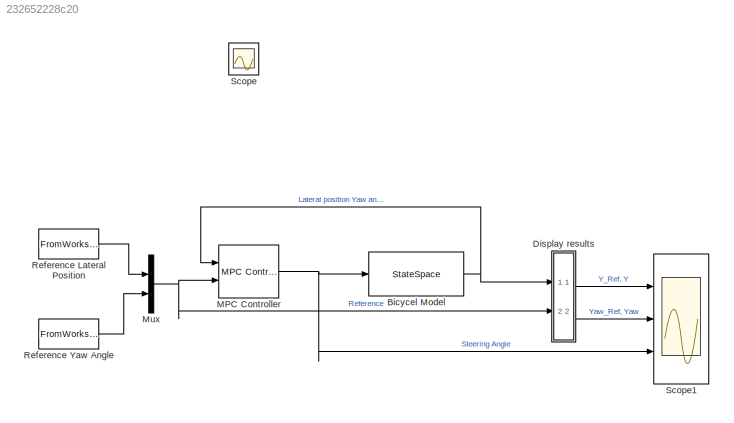
MODEL slx_232652228c20
KIND model
CONFIG AbsTol = auto
CONFIG EnableMultiTasking = off
CONFIG FixedStep = auto
CONFIG MaxStep = auto
CONFIG MinStep = auto
CONFIG RelTol = 1e-3
CONFIG SampleTimeConstraint = Unconstrained
CONFIG Solver = VariableStepAuto
CONFIG SolverName = VariableStepAuto
CONFIG StartTime = 0.0
CONFIG StopTime = 15
BLOCK [StateSpace] Bicycel Model
  A = A
  B = B
  C = C
  D = D
  InitialCondition = 0
  Ports = [1, 1]
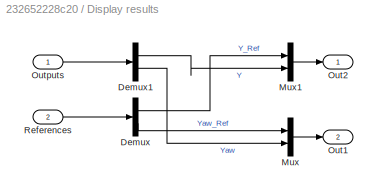
BLOCK [SubSystem] Display results
  Ports = [2, 2]
  RequestExecContextInheritance = off
  ShowPortLabels = none
BLOCK [Demux] Display results/Demux
  DisplayOption = bar
  Outputs = 2
  Ports = [1, 2]
BLOCK [Demux] Display results/Demux1
  DisplayOption = bar
  Outputs = 2
  Ports = [1, 2]
BLOCK [Mux] Display results/Mux
  DisplayOption = bar
  Inputs = 2
  Ports = [2, 1]
BLOCK [Mux] Display results/Mux1
  DisplayOption = bar
  Inputs = 2
  Ports = [2, 1]
BLOCK [Outport] Display results/Out1
  IconDisplay = Port number
  Port = 2
BLOCK [Outport] Display results/Out2
  IconDisplay = Port number
BLOCK [Inport] Display results/Outputs
  IconDisplay = Port number
BLOCK [Inport] Display results/References
  IconDisplay = Port number
  Port = 2
BLOCK [Reference] MPC Controller  REF=mpclib/MPC Controller  (lib defined in mdl_ae329e0e0455)
  Ports = [2, 1]
  SCDEnableBlockLinearizationSpecification = on
  SourceBlock = mpclib/MPC Controller
  SourceProductBaseCode = MP
  SourceProductName = Model Predictive Control Toolbox
  SourceType = MPC
BLOCK [Mux] Mux
  DisplayOption = bar
  Inputs = 2
  Ports = [2, 1]
BLOCK [FromWorkspace] Reference Lateral Position
  SampleTime = 0.1
  VariableName = y_ref2
  ZeroCross = on
BLOCK [FromWorkspace] Reference Yaw Angle
  SampleTime = 0.1
  VariableName = psy_ref2
  ZeroCross = on
BLOCK [Scope] Scope
  Floating = off
  IOType = viewer
  NumInputPorts = 1
  Ports = []
  ScopeSpecificationString = Simulink.scopes.TimeScopeBlockCfg('CurrentConfiguration', extmgr.ConfigurationSet(extmgr.Configuration('Core','General UI',true),extmgr.Configuration('Core','Source UI',true),extmgr.Configuration('Sources','WiredSimulink',true),extmgr.Configuration('Visuals','Time Domain',true,'SerializedDisplays',{struct('MinYLimReal','-10.00000','MaxYLimReal','10.00000','YLabelReal','','MinYLimMag','0.00000','Ma...<+1326ch>
BLOCK [Scope] Scope1
  Floating = off
  NumInputPorts = 3
  Ports = [3]
  ScopeSpecificationString = Simulink.scopes.TimeScopeBlockCfg('CurrentConfiguration', extmgr.ConfigurationSet(extmgr.Configuration('Core','General UI',true,'FigureColor',[0.831372549019608 0.815686274509804 0.784313725490196]),extmgr.Configuration('Core','Source UI',true),extmgr.Configuration('Sources','WiredSimulink',true,'DataLoggingVariableName','ScopeData1'),extmgr.Configuration('Visuals','Time Domain',true,'TimeAxisLabe...<+3465ch>
NET Bicycel Model:1 -> Display results:1, MPC Controller:1
LINE Display results/Demux1:1 -> Display results/Mux1:2
LINE Display results/Demux1:2 -> Display results/Mux:2
LINE Display results/Demux:1 -> Display results/Mux1:1
LINE Display results/Demux:2 -> Display results/Mux:1
LINE Display results/Mux1:1 -> Display results/Out2:1
LINE Display results/Mux:1 -> Display results/Out1:1
LINE Display results/Outputs:1 -> Display results/Demux1:1
LINE Display results/References:1 -> Display results/Demux:1
LINE Display results:1 -> Scope1:1
LINE Display results:2 -> Scope1:2
NET MPC Controller:1 -> Bicycel Model:1, Scope1:3
NET Mux:1 -> Display results:2, MPC Controller:2
LINE Reference Lateral Position:1 -> Mux:1
LINE Reference Yaw Angle:1 -> Mux:2
note: NET lines group one-source signal fan-out (src -> all destinations, sorted); 1:1 wires keep LINE
